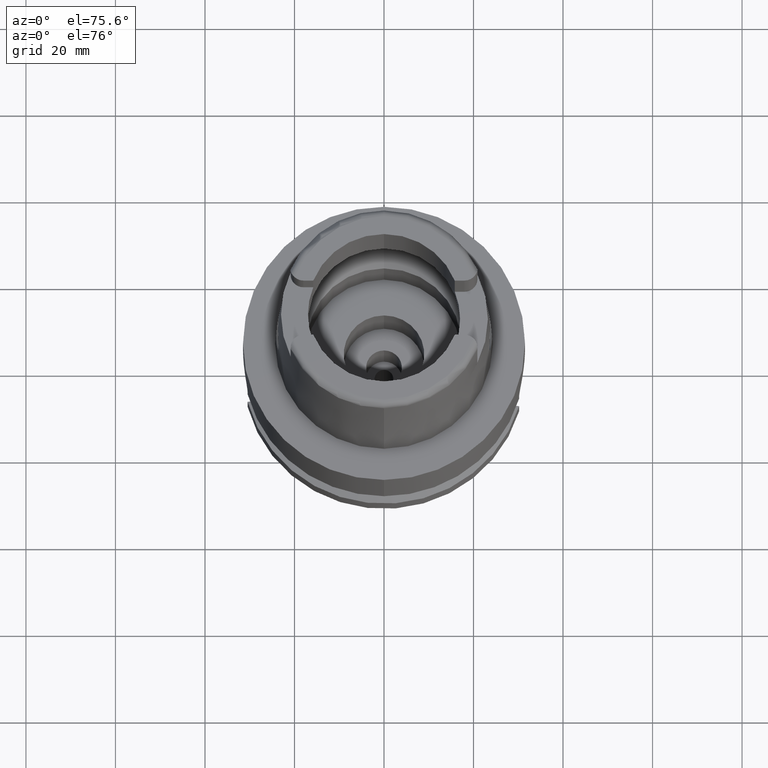
[diagram: clean part render]
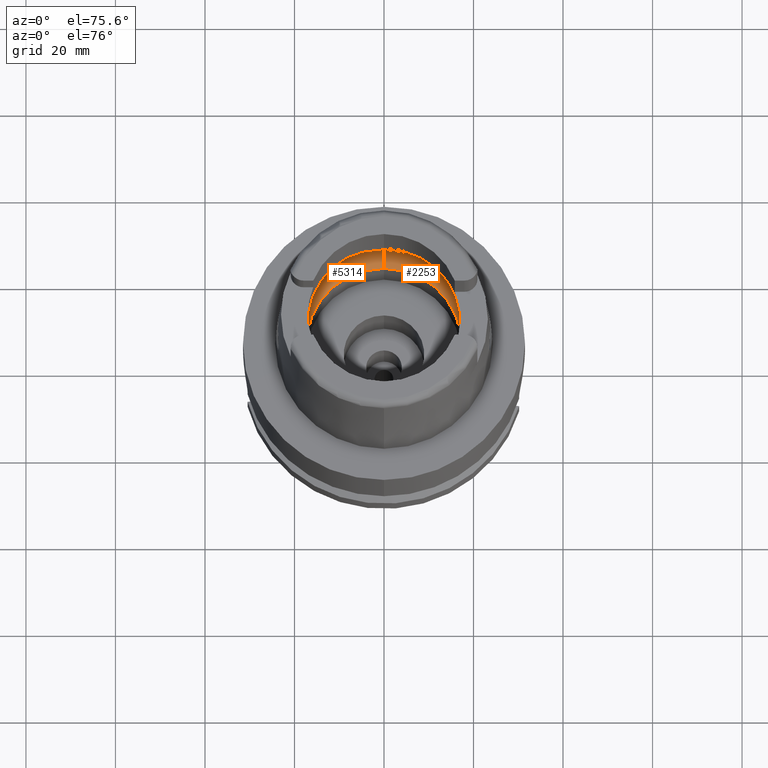
[diagram: same view with one multi-face feature highlighted, each face labeled with its STEP entity id]
A machine part, auxiliary view. The highlighted faces form ONE feature: a constant-radius fillet chain: 2 tangent blend faces with common blend radius 8 mm. The faces share edges in the B-rep.
Their STEP definitions:
[1] entity #5314 (Torus):
#39 = CARTESIAN_POINT ( 'NONE',  ( -19.91819960699401193, -1.528790138807751164, 5.574827418276589341 ) ) ;
#55 = ORIENTED_EDGE ( 'NONE', *, *, #1466, .F. ) ;
#73 = CARTESIAN_POINT ( 'NONE',  ( -19.84575864665999845, -2.479085262491000030, 6.186348233825000875 ) ) ;
#223 = ORIENTED_EDGE ( 'NONE', *, *, #3158, .F. ) ;
#339 = DIRECTION ( 'NONE',  ( 0.0000000000000000000, 1.000000000000000000, 0.0000000000000000000 ) ) ;
#361 = CARTESIAN_POINT ( 'NONE',  ( -19.94501428476000271, 0.2480002814738951344, 5.249999999999999112 ) ) ;
#378 = VERTEX_POINT ( 'NONE', #73 ) ;
#416 = CARTESIAN_POINT ( 'NONE',  ( -19.93292508344945801, 1.081630659659294169, 5.408972087979956989 ) ) ;
#450 = DIRECTION ( 'NONE',  ( -0.9922879323327794543, 0.1239542631244973381, 0.0000000000000000000 ) ) ;
#501 = CARTESIAN_POINT ( 'NONE',  ( -19.92208494194046509, -1.430041077684033990, 5.533135808937241329 ) ) ;
#524 = CARTESIAN_POINT ( 'NONE',  ( -19.94501428475999916, 0.0000000000000000000, 5.250000000000000000 ) ) ;
#558 = CARTESIAN_POINT ( 'NONE',  ( -19.84575864665999845, 2.479085262489999941, 6.186348233825000875 ) ) ;
#676 = CARTESIAN_POINT ( 'NONE',  ( -19.93856671072771292, 0.8185607198028845843, 5.338678409714962214 ) ) ;
#780 = CARTESIAN_POINT ( 'NONE',  ( -19.94501428475999916, 0.0000000000000000000, 5.250000000000000000 ) ) ;
#854 = CARTESIAN_POINT ( 'NONE',  ( -19.90996073982917380, 1.795817278995830657, 5.670328124222732136 ) ) ;
#934 = CARTESIAN_POINT ( 'NONE',  ( -19.90654447560747542, -1.770008974173177263, 5.691881888190377659 ) ) ;
#963 = CARTESIAN_POINT ( 'NONE',  ( 0.0000000000000000000, 0.0000000000000000000, 6.186348233825000875 ) ) ;
#1022 = EDGE_CURVE ( 'NONE', #5217, #1070, #5256, .T. ) ;
#1070 = VERTEX_POINT ( 'NONE', #558 ) ;
#1131 = FACE_OUTER_BOUND ( 'NONE', #1900, .T. ) ;
#1328 = CARTESIAN_POINT ( 'NONE',  ( -19.93856671042052398, -0.9459665778997381480, 5.348222674928019060 ) ) ;
#1376 = VERTEX_POINT ( 'NONE', #3949 ) ;
#1410 = DIRECTION ( 'NONE',  ( 0.0000000000000000000, 0.0000000000000000000, 1.000000000000000000 ) ) ;
#1466 = EDGE_CURVE ( 'NONE', #1070, #5273, #2126, .T. ) ;
#1553 = ORIENTED_EDGE ( 'NONE', *, *, #2877, .F. ) ;
#1656 = CIRCLE ( 'NONE', #2995, 7.999999999999992895 ) ;
#1764 = CARTESIAN_POINT ( 'NONE',  ( -19.91448525756728927, -1.610510976265786987, 5.612925495665686881 ) ) ;
#1853 = ORIENTED_EDGE ( 'NONE', *, *, #1022, .F. ) ;
#1900 = EDGE_LOOP ( 'NONE', ( #3645, #2898, #1553, #4522, #55, #1853, #223 ) ) ;
#2010 = CARTESIAN_POINT ( 'NONE',  ( -19.92840422587602944, 1.244362650384072122, 5.462311864171463860 ) ) ;
#2040 = DIRECTION ( 'NONE',  ( 0.0000000000000000000, 0.0000000000000000000, -1.000000000000000000 ) ) ;
#2069 = CARTESIAN_POINT ( 'NONE',  ( -19.92591704426989452, 1.321751840890049490, 5.490650643677390974 ) ) ;
#2126 = CIRCLE ( 'NONE', #2920, 20.00000000000001421 ) ;
#2189 = AXIS2_PLACEMENT_3D ( 'NONE', #2760, #3283, #339 ) ;
#2227 = CARTESIAN_POINT ( 'NONE',  ( 0.0000000000000000000, 0.0000000000000000000, 0.1500000000000999700 ) ) ;
#2428 = AXIS2_PLACEMENT_3D ( 'NONE', #2227, #1410, #3917 ) ;
#2442 = AXIS2_PLACEMENT_3D ( 'NONE', #4487, #3660, #2456 ) ;
#2456 = DIRECTION ( 'NONE',  ( 0.0000000000000000000, -0.6562500000000006661, -0.7545435292281016393 ) ) ;
#2516 = CIRCLE ( 'NONE', #2428, 17.25000000000000000 ) ;
#2548 = CARTESIAN_POINT ( 'NONE',  ( -19.92547007504345302, -1.335031240339097369, 5.495683724100088874 ) ) ;
#2577 = CARTESIAN_POINT ( 'NONE',  ( -19.86453968564131500, -2.328737885376345407, 6.053878405347992597 ) ) ;
#2629 = DIRECTION ( 'NONE',  ( 0.0000000000000000000, -1.000000000000000000, 0.0000000000000000000 ) ) ;
#2760 = CARTESIAN_POINT ( 'NONE',  ( 0.0000000000000000000, 0.0000000000000000000, 6.186348233825000875 ) ) ;
#2848 = CARTESIAN_POINT ( 'NONE',  ( -19.94501428475999916, 0.0000000000000000000, 5.250000000000000000 ) ) ;
#2877 = EDGE_CURVE ( 'NONE', #1376, #5214, #2516, .T. ) ;
#2898 = ORIENTED_EDGE ( 'NONE', *, *, #5332, .F. ) ;
#2908 = CARTESIAN_POINT ( 'NONE',  ( -19.90056784349247820, -1.871074272730828048, 5.748194928871746434 ) ) ;
#2920 = AXIS2_PLACEMENT_3D ( 'NONE', #963, #3408, #450 ) ;
#2941 = CARTESIAN_POINT ( 'NONE',  ( -19.93096058823649130, 1.157935579649966629, 5.432577573767241041 ) ) ;
#2995 = AXIS2_PLACEMENT_3D ( 'NONE', #3269, #3595, #4537 ) ;
#2998 = CARTESIAN_POINT ( 'NONE',  ( -19.92517785718085577, -1.343613127942956842, 5.498962406970089312 ) ) ;
#3158 = EDGE_CURVE ( 'NONE', #378, #5217, #4752, .T. ) ;
#3166 = TOROIDAL_SURFACE ( 'NONE', #2189, 12.00000000000000000, 8.000000000000000000 ) ;
#3269 = CARTESIAN_POINT ( 'NONE',  ( 0.0000000000000000000, 12.00000000000000000, 6.186348233825000875 ) ) ;
#3283 = DIRECTION ( 'NONE',  ( 0.0000000000000000000, 0.0000000000000000000, 1.000000000000000000 ) ) ;
#3347 = CARTESIAN_POINT ( 'NONE',  ( -19.88332310116147283, 2.178371483505385786, 5.921391814315846602 ) ) ;
#3408 = DIRECTION ( 'NONE',  ( 0.0000000000000000000, 0.0000000000000000000, -1.000000000000000000 ) ) ;
#3595 = DIRECTION ( 'NONE',  ( 1.000000000000000000, 0.0000000000000000000, 0.0000000000000000000 ) ) ;
#3645 = ORIENTED_EDGE ( 'NONE', *, *, #4100, .F. ) ;
#3660 = DIRECTION ( 'NONE',  ( -1.000000000000000000, 0.0000000000000000000, 0.0000000000000000000 ) ) ;
#3661 = EDGE_CURVE ( 'NONE', #1376, #5273, #1656, .T. ) ;
#3757 = CARTESIAN_POINT ( 'NONE',  ( -19.84575864665999845, 2.479085262489999941, 6.186348233825000875 ) ) ;
#3779 = CARTESIAN_POINT ( 'NONE',  ( -19.92391559123418787, -1.379822842001579009, 5.513022806674898746 ) ) ;
#3786 = CARTESIAN_POINT ( 'NONE',  ( -19.92705993187612989, 1.286922590644232978, 5.477696685208107930 ) ) ;
#3832 = CARTESIAN_POINT ( 'NONE',  ( -19.94501428475999560, -0.4960423020627297008, 5.249999999999995559 ) ) ;
#3902 = VERTEX_POINT ( 'NONE', #5218 ) ;
#3917 = DIRECTION ( 'NONE',  ( 0.0000000000000000000, 1.000000000000000000, 0.0000000000000000000 ) ) ;
#3949 = CARTESIAN_POINT ( 'NONE',  ( 0.0000000000000000000, 17.25000000000000000, 0.1500000000000999700 ) ) ;
#4095 = CARTESIAN_POINT ( 'NONE',  ( 0.0000000000000000000, 20.00000000000000000, 6.186348233825000875 ) ) ;
#4100 = EDGE_CURVE ( 'NONE', #3902, #378, #4466, .T. ) ;
#4105 = CARTESIAN_POINT ( 'NONE',  ( -19.92646963884338263, 1.305022040076338818, 5.484397814373272340 ) ) ;
#4274 = CARTESIAN_POINT ( 'NONE',  ( -19.84575864665999845, -2.479085262491000030, 6.186348233825000875 ) ) ;
#4422 = CARTESIAN_POINT ( 'NONE',  ( -19.94340239125193293, 0.4850157974226460000, 5.274610163457148282 ) ) ;
#4466 = CIRCLE ( 'NONE', #5284, 20.00000000000000000 ) ;
#4487 = CARTESIAN_POINT ( 'NONE',  ( 0.0000000000000000000, -12.00000000000000000, 6.186348233825000875 ) ) ;
#4522 = ORIENTED_EDGE ( 'NONE', *, *, #3661, .T. ) ;
#4537 = DIRECTION ( 'NONE',  ( 0.0000000000000000000, 0.6562500000000006661, -0.7545435292281016393 ) ) ;
#4752 = B_SPLINE_CURVE_WITH_KNOTS ( 'NONE', 3,
 ( #4274, #2577, #5063, #2908, #934, #1764, #39, #501, #3779, #5118, #2998, #2548, #1328, #3832, #524 ),
 .UNSPECIFIED., .F., .F.,
 ( 4, 2, 2, 1, 1, 1, 2, 2, 4 ),
 ( 0.0000000000000000000, 0.2500000000000051070, 0.3750000000000077716, 0.4375000000000091038, 0.4687500000000098255, 0.4843750000000101030, 0.4921875000000099920, 0.5000000000000098810, 1.000000000000000000 ),
 .UNSPECIFIED. ) ;
#4877 = CARTESIAN_POINT ( 'NONE',  ( 0.0000000000000000000, -17.25000000000000000, 0.1500000000000999700 ) ) ;
#4890 = CARTESIAN_POINT ( 'NONE',  ( 0.0000000000000000000, 0.0000000000000000000, 6.186348233825000875 ) ) ;
#5028 = CIRCLE ( 'NONE', #2442, 7.999999999999992895 ) ;
#5063 = CARTESIAN_POINT ( 'NONE',  ( -19.88058961472209774, -2.158414018199903417, 5.925204145833316893 ) ) ;
#5118 = CARTESIAN_POINT ( 'NONE',  ( -19.92467615132159864, -1.358120919786871328, 5.504564686247708671 ) ) ;
#5214 = VERTEX_POINT ( 'NONE', #4877 ) ;
#5217 = VERTEX_POINT ( 'NONE', #2848 ) ;
#5218 = CARTESIAN_POINT ( 'NONE',  ( 0.0000000000000000000, -20.00000000000000000, 6.186348233825000875 ) ) ;
#5256 = B_SPLINE_CURVE_WITH_KNOTS ( 'NONE', 3,
 ( #780, #361, #4422, #676, #5442, #416, #2941, #2010, #3786, #4105, #5366, #2069, #854, #3347, #3757 ),
 .UNSPECIFIED., .F., .F.,
 ( 4, 2, 2, 1, 1, 1, 2, 2, 4 ),
 ( 0.0000000000000000000, 0.2499999999999956146, 0.3749999999999934497, 0.4374999999999923395, 0.4687499999999917288, 0.4843749999999914513, 0.4921874999999914513, 0.4999999999999915623, 1.000000000000000000 ),
 .UNSPECIFIED. ) ;
#5273 = VERTEX_POINT ( 'NONE', #4095 ) ;
#5284 = AXIS2_PLACEMENT_3D ( 'NONE', #4890, #2040, #2629 ) ;
#5314 = ADVANCED_FACE ( 'NONE', ( #1131 ), #3166, .F. ) ;
#5332 = EDGE_CURVE ( 'NONE', #5214, #3902, #5028, .T. ) ;
#5366 = CARTESIAN_POINT ( 'NONE',  ( -19.92607296192538513, 1.317057065037986030, 5.488888788417265907 ) ) ;
#5442 = CARTESIAN_POINT ( 'NONE',  ( -19.93655184384261858, 0.9261166967963114782, 5.364558725656097593 ) ) ;
[2] entity #2253 (Torus):
#102 = VERTEX_POINT ( 'NONE', #3496 ) ;
#143 = ORIENTED_EDGE ( 'NONE', *, *, #5332, .T. ) ;
#214 = AXIS2_PLACEMENT_3D ( 'NONE', #2899, #459, #5017 ) ;
#248 = CARTESIAN_POINT ( 'NONE',  ( 19.84575864665999845, 2.479085262491000030, 6.186348233825000875 ) ) ;
#270 = CARTESIAN_POINT ( 'NONE',  ( 19.88058969236887918, 2.158413152842841853, 5.925203484518755559 ) ) ;
#283 = CARTESIAN_POINT ( 'NONE',  ( 19.94340238078356720, -0.4850176595367955978, 5.274610361541469672 ) ) ;
#316 = CARTESIAN_POINT ( 'NONE',  ( 19.84575864665999845, -2.479085262491000030, 6.186348233825000875 ) ) ;
#331 = CARTESIAN_POINT ( 'NONE',  ( 19.94501428475999916, 0.0000000000000000000, 5.250000000000000000 ) ) ;
#421 = ORIENTED_EDGE ( 'NONE', *, *, #3472, .F. ) ;
#428 = EDGE_CURVE ( 'NONE', #578, #3902, #3258, .T. ) ;
#459 = DIRECTION ( 'NONE',  ( 0.0000000000000000000, 0.0000000000000000000, 1.000000000000000000 ) ) ;
#578 = VERTEX_POINT ( 'NONE', #4147 ) ;
#644 = DIRECTION ( 'NONE',  ( 0.9922879323327794543, -0.1239542631244973381, 0.0000000000000000000 ) ) ;
#711 = CARTESIAN_POINT ( 'NONE',  ( 19.93292500493674524, -1.081634238850563756, 5.408973163817657692 ) ) ;
#760 = CARTESIAN_POINT ( 'NONE',  ( 19.93856675271269907, 0.9459631445366759595, 5.348221889603004264 ) ) ;
#791 = CARTESIAN_POINT ( 'NONE',  ( 19.92705981527248582, -1.286926606873759260, 5.477698152406421883 ) ) ;
#1055 = EDGE_CURVE ( 'NONE', #5273, #102, #4154, .T. ) ;
#1100 = CARTESIAN_POINT ( 'NONE',  ( 19.92208506923287459, 1.430037391292729776, 5.533134286467971563 ) ) ;
#1127 = AXIS2_PLACEMENT_3D ( 'NONE', #1969, #4989, #3280 ) ;
#1146 = CARTESIAN_POINT ( 'NONE',  ( 19.91819973341328520, 1.528786876979105092, 5.574825955112730824 ) ) ;
#1194 = CARTESIAN_POINT ( 'NONE',  ( 19.94501428475999916, 0.0000000000000000000, 5.250000000000000000 ) ) ;
#1376 = VERTEX_POINT ( 'NONE', #3949 ) ;
#1425 = AXIS2_PLACEMENT_3D ( 'NONE', #4255, #3814, #4307 ) ;
#1450 = ORIENTED_EDGE ( 'NONE', *, *, #3800, .F. ) ;
#1505 = CARTESIAN_POINT ( 'NONE',  ( 19.90654459260023046, 1.770006697072543655, 5.691880654306274323 ) ) ;
#1550 = EDGE_LOOP ( 'NONE', ( #1450, #3467, #3147, #421, #143, #5194, #2317 ) ) ;
#1656 = CIRCLE ( 'NONE', #2995, 7.999999999999992895 ) ;
#1675 = AXIS2_PLACEMENT_3D ( 'NONE', #1898, #3144, #644 ) ;
#1898 = CARTESIAN_POINT ( 'NONE',  ( 0.0000000000000000000, 0.0000000000000000000, 6.186348233825000875 ) ) ;
#1905 = CARTESIAN_POINT ( 'NONE',  ( 19.90056795285839186, 1.871072381427642872, 5.748193827892897012 ) ) ;
#1946 = CARTESIAN_POINT ( 'NONE',  ( 19.93856666885426776, -0.8185636124059944008, 5.338679045133568835 ) ) ;
#1969 = CARTESIAN_POINT ( 'NONE',  ( 0.0000000000000000000, 0.0000000000000000000, 0.1500000000000999700 ) ) ;
#2253 = ADVANCED_FACE ( 'NONE', ( #3801 ), #5061, .F. ) ;
#2317 = ORIENTED_EDGE ( 'NONE', *, *, #5241, .F. ) ;
#2388 = CARTESIAN_POINT ( 'NONE',  ( 19.94501428475999560, 0.4960402853743198781, 5.249999999999998224 ) ) ;
#2395 = CARTESIAN_POINT ( 'NONE',  ( 19.92607283891191727, -1.317061137141631644, 5.488890315884864535 ) ) ;
#2418 = CIRCLE ( 'NONE', #1127, 17.25000000000000000 ) ;
#2442 = AXIS2_PLACEMENT_3D ( 'NONE', #4487, #3660, #2456 ) ;
#2456 = DIRECTION ( 'NONE',  ( 0.0000000000000000000, -0.6562500000000006661, -0.7545435292281016393 ) ) ;
#2751 = CARTESIAN_POINT ( 'NONE',  ( 19.92391571847977616, 1.379818936262250162, 5.513021260670475598 ) ) ;
#2789 = CARTESIAN_POINT ( 'NONE',  ( 19.92646951840612601, -1.305026090026983221, 5.484399317726092349 ) ) ;
#2810 = CARTESIAN_POINT ( 'NONE',  ( 19.92517798419736508, 1.343609062691619505, 5.498960846759645804 ) ) ;
#2820 = CARTESIAN_POINT ( 'NONE',  ( 19.93096049696546856, -1.157939335591951835, 5.432578789541310016 ) ) ;
#2899 = CARTESIAN_POINT ( 'NONE',  ( 0.0000000000000000000, 0.0000000000000000000, 6.186348233825000875 ) ) ;
#2995 = AXIS2_PLACEMENT_3D ( 'NONE', #3269, #3595, #4537 ) ;
#3015 = VERTEX_POINT ( 'NONE', #1194 ) ;
#3092 = B_SPLINE_CURVE_WITH_KNOTS ( 'NONE', 3,
 ( #3247, #3313, #283, #1946, #3633, #711, #2820, #4127, #791, #2789, #2395, #3220, #3717, #4967, #316 ),
 .UNSPECIFIED., .F., .F.,
 ( 4, 2, 2, 1, 1, 1, 2, 2, 4 ),
 ( 0.0000000000000000000, 0.2499999999999993339, 0.3749999999999989453, 0.4374999999999988343, 0.4687499999999988343, 0.4843749999999986122, 0.4921874999999987788, 0.4999999999999990008, 1.000000000000000000 ),
 .UNSPECIFIED. ) ;
#3144 = DIRECTION ( 'NONE',  ( 0.0000000000000000000, 0.0000000000000000000, -1.000000000000000000 ) ) ;
#3147 = ORIENTED_EDGE ( 'NONE', *, *, #3661, .F. ) ;
#3188 = CARTESIAN_POINT ( 'NONE',  ( 19.91448538158094550, 1.610508053762594205, 5.612924102263945336 ) ) ;
#3220 = CARTESIAN_POINT ( 'NONE',  ( 19.92591691872321036, -1.321755966737460097, 5.490652197696743286 ) ) ;
#3247 = CARTESIAN_POINT ( 'NONE',  ( 19.94501428475999916, 0.0000000000000000000, 5.250000000000000000 ) ) ;
#3258 = CIRCLE ( 'NONE', #1675, 20.00000000000001421 ) ;
#3269 = CARTESIAN_POINT ( 'NONE',  ( 0.0000000000000000000, 12.00000000000000000, 6.186348233825000875 ) ) ;
#3280 = DIRECTION ( 'NONE',  ( 0.0000000000000000000, -1.000000000000000000, 0.0000000000000000000 ) ) ;
#3313 = CARTESIAN_POINT ( 'NONE',  ( 19.94501428475999916, -0.2480012822881115242, 5.249999999999998224 ) ) ;
#3467 = ORIENTED_EDGE ( 'NONE', *, *, #1055, .F. ) ;
#3472 = EDGE_CURVE ( 'NONE', #5214, #1376, #2418, .T. ) ;
#3496 = CARTESIAN_POINT ( 'NONE',  ( 19.84575864665999845, 2.479085262491000030, 6.186348233825000875 ) ) ;
#3595 = DIRECTION ( 'NONE',  ( 1.000000000000000000, 0.0000000000000000000, 0.0000000000000000000 ) ) ;
#3633 = CARTESIAN_POINT ( 'NONE',  ( 19.93655178888372603, -0.9261198900591779415, 5.364559530321097114 ) ) ;
#3660 = DIRECTION ( 'NONE',  ( -1.000000000000000000, 0.0000000000000000000, 0.0000000000000000000 ) ) ;
#3661 = EDGE_CURVE ( 'NONE', #1376, #5273, #1656, .T. ) ;
#3692 = B_SPLINE_CURVE_WITH_KNOTS ( 'NONE', 3,
 ( #248, #4925, #270, #1905, #1505, #3188, #1146, #1100, #2751, #4451, #2810, #4505, #760, #2388, #331 ),
 .UNSPECIFIED., .F., .F.,
 ( 4, 2, 2, 1, 1, 1, 2, 2, 4 ),
 ( 0.0000000000000000000, 0.2499999999999997780, 0.3749999999999998890, 0.4374999999999997780, 0.4687499999999997224, 0.4843749999999998335, 0.4921874999999997224, 0.4999999999999996669, 1.000000000000000000 ),
 .UNSPECIFIED. ) ;
#3717 = CARTESIAN_POINT ( 'NONE',  ( 19.90996060949652602, -1.795819319521762880, 5.670329520825312386 ) ) ;
#3800 = EDGE_CURVE ( 'NONE', #102, #3015, #3692, .T. ) ;
#3801 = FACE_OUTER_BOUND ( 'NONE', #1550, .T. ) ;
#3814 = DIRECTION ( 'NONE',  ( 0.0000000000000000000, 0.0000000000000000000, -1.000000000000000000 ) ) ;
#3902 = VERTEX_POINT ( 'NONE', #5218 ) ;
#3949 = CARTESIAN_POINT ( 'NONE',  ( 0.0000000000000000000, 17.25000000000000000, 0.1500000000000999700 ) ) ;
#4095 = CARTESIAN_POINT ( 'NONE',  ( 0.0000000000000000000, 20.00000000000000000, 6.186348233825000875 ) ) ;
#4127 = CARTESIAN_POINT ( 'NONE',  ( 19.92840411800285239, -1.244366584479200233, 5.462313247185337062 ) ) ;
#4147 = CARTESIAN_POINT ( 'NONE',  ( 19.84575864665999845, -2.479085262491000030, 6.186348233825000875 ) ) ;
#4154 = CIRCLE ( 'NONE', #1425, 20.00000000000000000 ) ;
#4255 = CARTESIAN_POINT ( 'NONE',  ( 0.0000000000000000000, 0.0000000000000000000, 6.186348233825000875 ) ) ;
#4307 = DIRECTION ( 'NONE',  ( 0.0000000000000000000, 1.000000000000000000, 0.0000000000000000000 ) ) ;
#4451 = CARTESIAN_POINT ( 'NONE',  ( 19.92467627844355960, 1.358116918539620022, 5.504563131531990727 ) ) ;
#4487 = CARTESIAN_POINT ( 'NONE',  ( 0.0000000000000000000, -12.00000000000000000, 6.186348233825000875 ) ) ;
#4505 = CARTESIAN_POINT ( 'NONE',  ( 19.92547020324161622, 1.335027099705185627, 5.495682146681671654 ) ) ;
#4537 = DIRECTION ( 'NONE',  ( 0.0000000000000000000, 0.6562500000000006661, -0.7545435292281016393 ) ) ;
#4877 = CARTESIAN_POINT ( 'NONE',  ( 0.0000000000000000000, -17.25000000000000000, 0.1500000000000999700 ) ) ;
#4925 = CARTESIAN_POINT ( 'NONE',  ( 19.86453973035714426, 2.328737527431136822, 6.053878089965434306 ) ) ;
#4967 = CARTESIAN_POINT ( 'NONE',  ( 19.88332301270226665, -2.178372191595277396, 5.921392438207983666 ) ) ;
#4989 = DIRECTION ( 'NONE',  ( 0.0000000000000000000, 0.0000000000000000000, 1.000000000000000000 ) ) ;
#5017 = DIRECTION ( 'NONE',  ( 0.0000000000000000000, 1.000000000000000000, 0.0000000000000000000 ) ) ;
#5028 = CIRCLE ( 'NONE', #2442, 7.999999999999992895 ) ;
#5061 = TOROIDAL_SURFACE ( 'NONE', #214, 12.00000000000000000, 8.000000000000000000 ) ;
#5194 = ORIENTED_EDGE ( 'NONE', *, *, #428, .F. ) ;
#5214 = VERTEX_POINT ( 'NONE', #4877 ) ;
#5218 = CARTESIAN_POINT ( 'NONE',  ( 0.0000000000000000000, -20.00000000000000000, 6.186348233825000875 ) ) ;
#5241 = EDGE_CURVE ( 'NONE', #3015, #578, #3092, .T. ) ;
#5273 = VERTEX_POINT ( 'NONE', #4095 ) ;
#5332 = EDGE_CURVE ( 'NONE', #5214, #3902, #5028, .T. ) ;